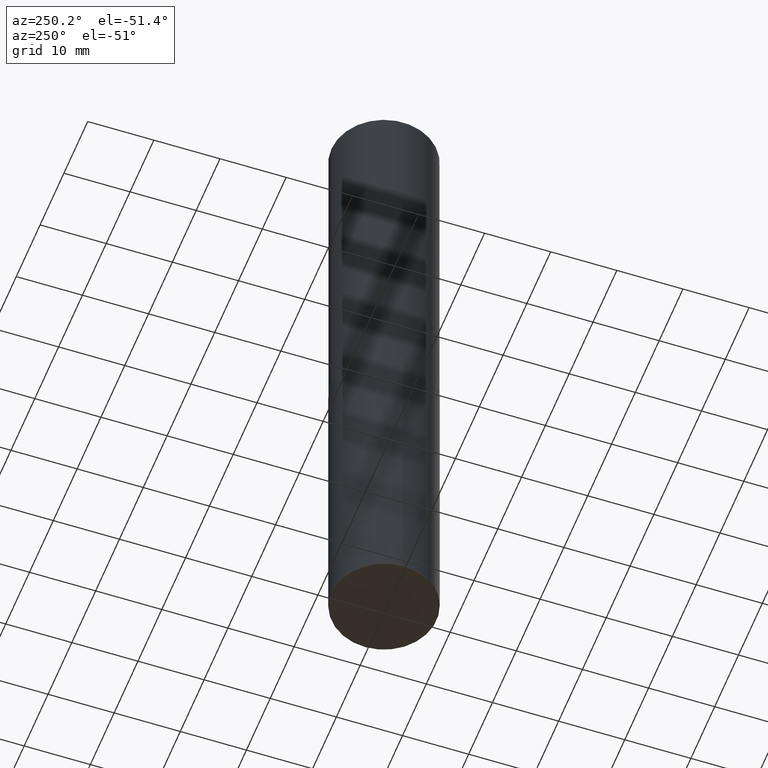
[diagram: clean part render]
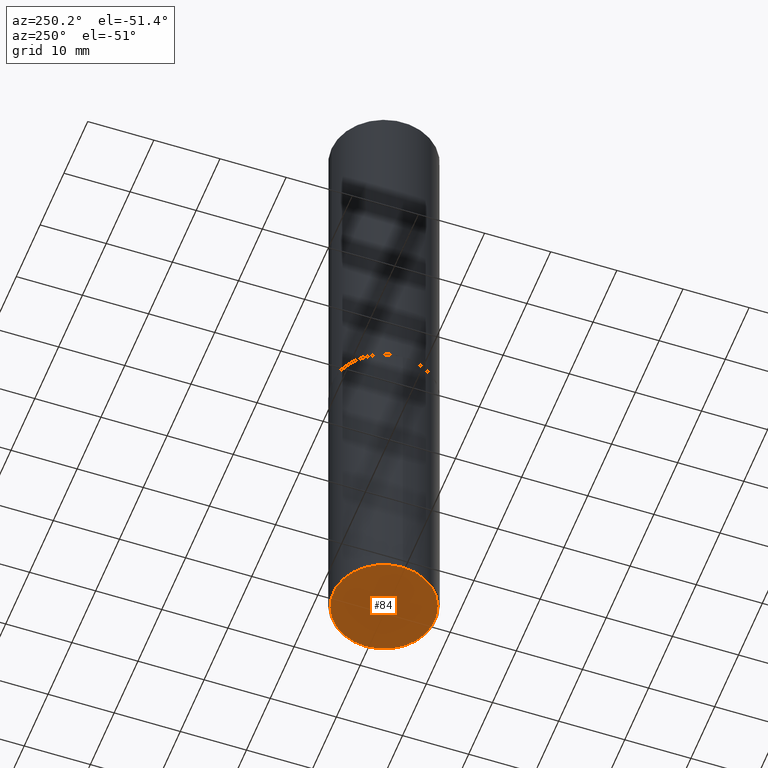
[diagram: same view with one face highlighted and labeled with its STEP entity id]
A machine part, auxiliary view. The second image highlights one B-rep face of the part: STEP entity #84.
In plain terms, the highlighted planar face has unit normal (0, -0, -1).
Its self-contained STEP definition (entity closure, byte-faithful):
#4 = DIRECTION ( 'NONE',  ( -2.445468806185136597E-29, 3.491481338843145583E-15, 1.000000000000000000 ) ) ;
#28 = CARTESIAN_POINT ( 'NONE',  ( 9.781875224740545266E-29, -1.396592535537258075E-14, -3.999999999999999556 ) ) ;
#58 = EDGE_CURVE ( 'NONE', #209, #139, #265, .T. ) ;
#64 = DIRECTION ( 'NONE',  ( 1.000000000000000000, -6.982962677686265922E-15, 0.000000000000000000 ) ) ;
#84 = ADVANCED_FACE ( 'NONE', ( #148 ), #298, .T. ) ;
#118 = EDGE_CURVE ( 'NONE', #139, #209, #317, .T. ) ;
#139 = VERTEX_POINT ( 'NONE', #416 ) ;
#148 = FACE_OUTER_BOUND ( 'NONE', #380, .T. ) ;
#168 = AXIS2_PLACEMENT_3D ( 'NONE', #356, #293, #226 ) ;
#197 = AXIS2_PLACEMENT_3D ( 'NONE', #357, #223, #64 ) ;
#209 = VERTEX_POINT ( 'NONE', #383 ) ;
#223 = DIRECTION ( 'NONE',  ( -2.445468806185136597E-29, 3.491481338843145583E-15, 1.000000000000000000 ) ) ;
#226 = DIRECTION ( 'NONE',  ( -1.000000000000000000, 6.982962677686265922E-15, -4.876176775795935793E-29 ) ) ;
#265 = CIRCLE ( 'NONE', #316, 0.3025000000000000466 ) ;
#286 = DIRECTION ( 'NONE',  ( 1.000000000000000000, -6.982962677686265922E-15, 0.000000000000000000 ) ) ;
#293 = DIRECTION ( 'NONE',  ( 2.438088387897960049E-29, -3.491481338843145188E-15, -1.000000000000000000 ) ) ;
#298 = PLANE ( 'NONE',  #168 ) ;
#307 = ORIENTED_EDGE ( 'NONE', *, *, #118, .F. ) ;
#316 = AXIS2_PLACEMENT_3D ( 'NONE', #28, #4, #286 ) ;
#317 = CIRCLE ( 'NONE', #197, 0.3025000000000000466 ) ;
#350 = ORIENTED_EDGE ( 'NONE', *, *, #58, .F. ) ;
#356 = CARTESIAN_POINT ( 'NONE',  ( 1.482687160976392448E-28, -6.741203388657175081E-15, -4.000000000000000000 ) ) ;
#357 = CARTESIAN_POINT ( 'NONE',  ( 9.781875224740545266E-29, -1.396592535537258075E-14, -3.999999999999999556 ) ) ;
#380 = EDGE_LOOP ( 'NONE', ( #307, #350 ) ) ;
#383 = CARTESIAN_POINT ( 'NONE',  ( -0.3025000000000000466, -1.176354903621605689E-14, -3.999999999999999556 ) ) ;
#416 = CARTESIAN_POINT ( 'NONE',  ( 0.3025000000000000466, -1.607827156537267738E-14, -3.999999999999999556 ) ) ;